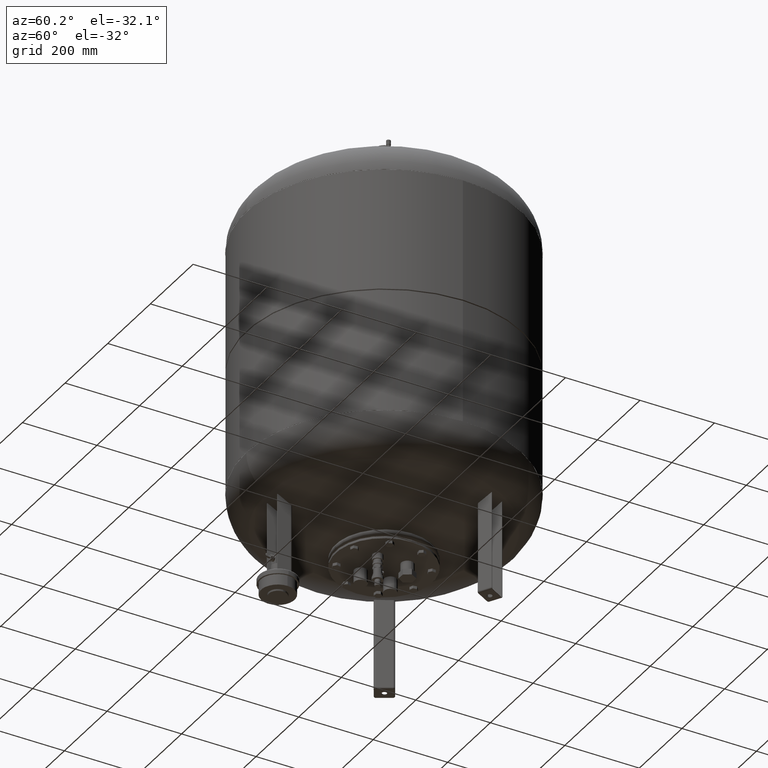
[diagram: clean part render]
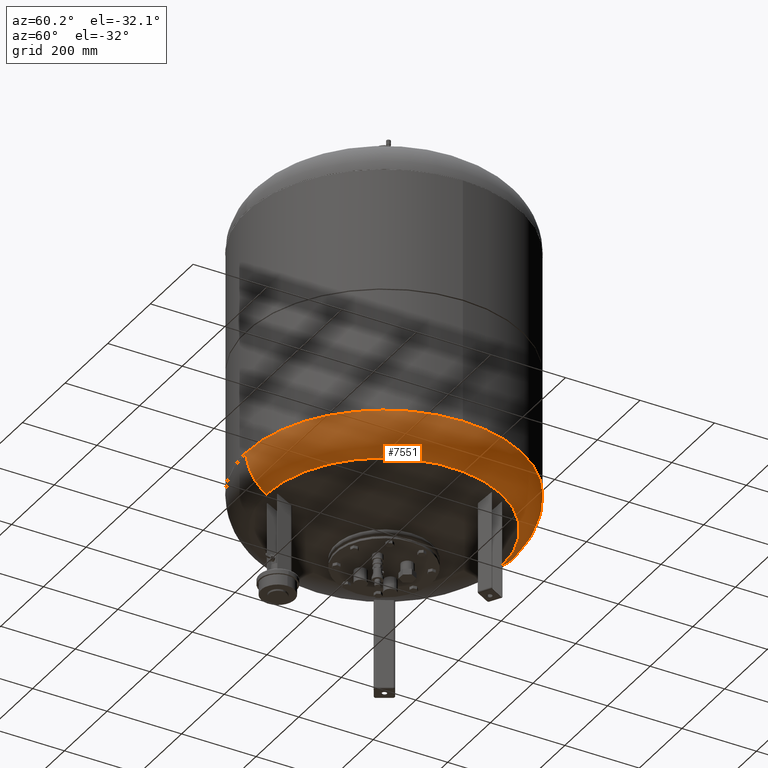
[diagram: same view with one face highlighted and labeled with its STEP entity id]
A machine part, auxiliary view. The second image highlights one B-rep face of the part: STEP entity #7551.
In plain terms, the highlighted toroidal blend (fillet) surface has major radius 254.5 mm and minor (blend) radius 115.5 mm.
Its self-contained STEP definition (entity closure, byte-faithful):
#7437=CARTESIAN_POINT('',(370.0,1.062956E-014,368.793879611869560));
#7438=VERTEX_POINT('',#7437);
#7445=CARTESIAN_POINT('',(-4.531044E-014,369.999999999999940,368.793879611869610));
#7446=VERTEX_POINT('',#7445);
#7447=CARTESIAN_POINT('',(0.0,-3.468087E-014,368.793879611869560));
#7448=DIRECTION('',(0.0,0.0,1.0));
#7449=DIRECTION('',(-1.0,0.0,0.0));
#7450=AXIS2_PLACEMENT_3D('',#7447,#7448,#7449);
#7451=CIRCLE('',#7450,370.0);
#7452=EDGE_CURVE('',#7438,#7446,#7451,.T.);
#7469=CARTESIAN_POINT('',(0.0,-370.000000000000060,368.793879611869500));
#7470=VERTEX_POINT('',#7469);
#7471=CARTESIAN_POINT('',(0.0,-315.931034482758610,270.985505725079410));
#7472=VERTEX_POINT('',#7471);
#7473=CARTESIAN_POINT('',(0.0,-254.500000000000060,368.793879611869500));
#7474=DIRECTION('',(1.0,0.0,0.0));
#7475=DIRECTION('',(0.0,-1.0,0.0));
#7476=AXIS2_PLACEMENT_3D('',#7473,#7474,#7475);
#7477=CIRCLE('',#7476,115.500000000000000);
#7478=EDGE_CURVE('',#7470,#7472,#7477,.T.);
#7488=CARTESIAN_POINT('',(-3.868912E-014,315.931034482758610,270.985505725079630));
#7489=VERTEX_POINT('',#7488);
#7490=CARTESIAN_POINT('',(-3.116623E-014,254.500000000000000,368.793879611869610));
#7491=DIRECTION('',(-1.0,0.0,0.0));
#7492=DIRECTION('',(0.0,1.0,0.0));
#7493=AXIS2_PLACEMENT_3D('',#7490,#7491,#7492);
#7494=CIRCLE('',#7493,115.500000000000000);
#7495=EDGE_CURVE('',#7446,#7489,#7494,.T.);
#7523=CARTESIAN_POINT('',(0.0,-1.671377E-014,270.985505725079520));
#7524=DIRECTION('',(0.0,0.0,1.0));
#7525=DIRECTION('',(-1.0,0.0,0.0));
#7526=AXIS2_PLACEMENT_3D('',#7523,#7524,#7525);
#7527=CIRCLE('',#7526,315.931034482758610);
#7528=EDGE_CURVE('',#7472,#7489,#7527,.T.);
#7533=CARTESIAN_POINT('',(0.0,-3.468087E-014,368.793879611869560));
#7534=DIRECTION('',(0.0,-1.836970E-016,1.0));
#7535=DIRECTION('',(0.0,-1.0,0.0));
#7536=AXIS2_PLACEMENT_3D('',#7533,#7534,#7535);
#7537=TOROIDAL_SURFACE('',#7536,254.500000000000030,115.500000000000000);
#7538=ORIENTED_EDGE('',*,*,#7478,.T.);
#7539=ORIENTED_EDGE('',*,*,#7528,.T.);
#7540=ORIENTED_EDGE('',*,*,#7495,.F.);
#7541=ORIENTED_EDGE('',*,*,#7452,.F.);
#7542=CARTESIAN_POINT('',(0.0,-3.468087E-014,368.793879611869560));
#7543=DIRECTION('',(0.0,0.0,1.0));
#7544=DIRECTION('',(-1.0,0.0,0.0));
#7545=AXIS2_PLACEMENT_3D('',#7542,#7543,#7544);
#7546=CIRCLE('',#7545,370.0);
#7547=EDGE_CURVE('',#7470,#7438,#7546,.T.);
#7548=ORIENTED_EDGE('',*,*,#7547,.F.);
#7549=EDGE_LOOP('',(#7538,#7539,#7540,#7541,#7548));
#7550=FACE_OUTER_BOUND('',#7549,.T.);
#7551=ADVANCED_FACE('',(#7550),#7537,.T.);